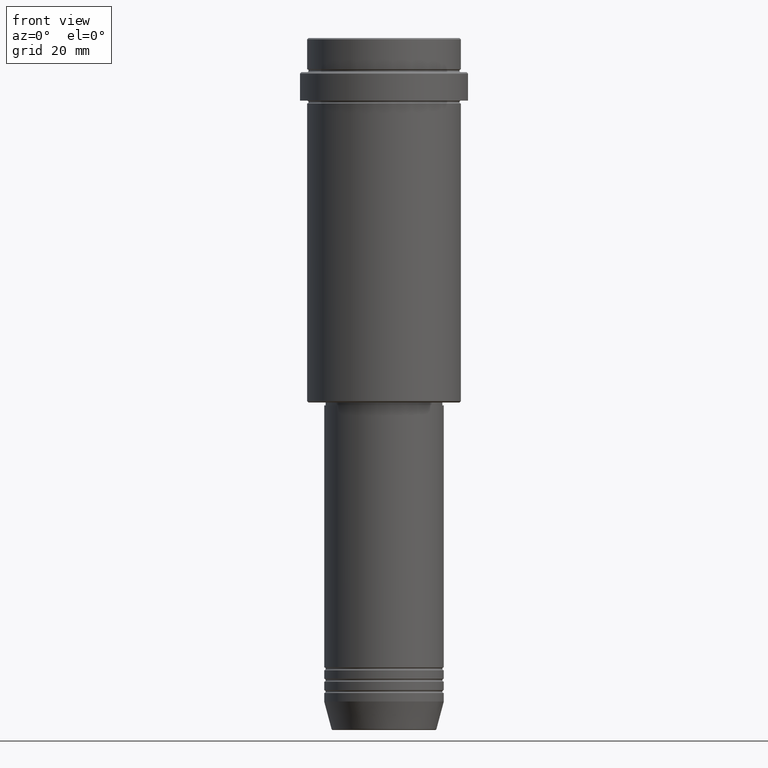
[diagram: clean part render]
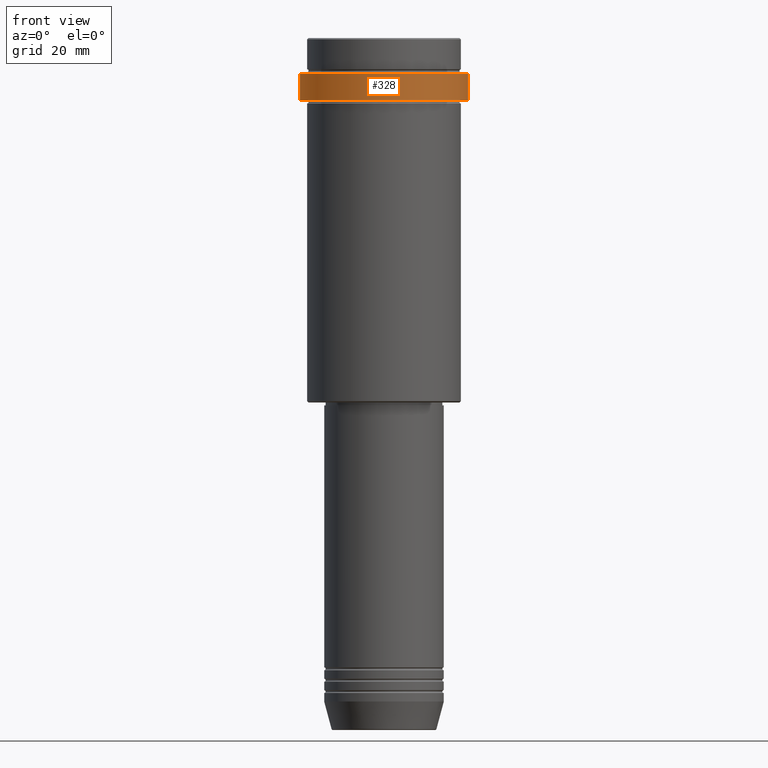
[diagram: same view with one face highlighted and labeled with its STEP entity id]
A machine part, front view. The second image highlights one B-rep face of the part: STEP entity #328.
In plain terms, the highlighted cylindrical surface (partial cylindrical patch) has radius 29.5 mm, axis along (-0, -0, 1).
Its self-contained STEP definition (entity closure, byte-faithful):
#58 = EDGE_LOOP ( 'NONE', ( #370, #353, #477, #722 ) ) ;
#166 = CARTESIAN_POINT ( 'NONE',  ( 0.000000000000000000, 0.000000000000000000, 0.000000000000000000 ) ) ;
#179 = FACE_OUTER_BOUND ( 'NONE', #58, .T. ) ;
#277 = VECTOR ( 'NONE', #1008, 1000.000000000000000 ) ;
#282 = CARTESIAN_POINT ( 'NONE',  ( 29.50000000000000000, 0.000000000000000000, 0.000000000000000000 ) ) ;
#306 = DIRECTION ( 'NONE',  ( -0.000000000000000000, -0.000000000000000000, 1.000000000000000000 ) ) ;
#311 = VERTEX_POINT ( 'NONE', #944 ) ;
#328 = ADVANCED_FACE ( 'NONE', ( #179 ), #926, .T. ) ;
#341 = AXIS2_PLACEMENT_3D ( 'NONE', #1153, #491, #469 ) ;
#344 = EDGE_CURVE ( 'NONE', #1013, #311, #599, .T. ) ;
#353 = ORIENTED_EDGE ( 'NONE', *, *, #693, .T. ) ;
#370 = ORIENTED_EDGE ( 'NONE', *, *, #1154, .F. ) ;
#469 = DIRECTION ( 'NONE',  ( 1.000000000000000000, 0.000000000000000000, 0.000000000000000000 ) ) ;
#477 = ORIENTED_EDGE ( 'NONE', *, *, #344, .T. ) ;
#491 = DIRECTION ( 'NONE',  ( -0.000000000000000000, -0.000000000000000000, 1.000000000000000000 ) ) ;
#499 = CIRCLE ( 'NONE', #1313, 29.50000000000000000 ) ;
#505 = EDGE_CURVE ( 'NONE', #311, #650, #499, .T. ) ;
#559 = DIRECTION ( 'NONE',  ( 1.000000000000000000, 0.000000000000000000, 0.000000000000000000 ) ) ;
#599 = LINE ( 'NONE', #282, #1183 ) ;
#603 = CARTESIAN_POINT ( 'NONE',  ( -29.50000000000000000, 3.612708057484691604E-15, 0.000000000000000000 ) ) ;
#650 = VERTEX_POINT ( 'NONE', #1122 ) ;
#693 = EDGE_CURVE ( 'NONE', #1407, #1013, #844, .T. ) ;
#722 = ORIENTED_EDGE ( 'NONE', *, *, #505, .T. ) ;
#791 = DIRECTION ( 'NONE',  ( 0.000000000000000000, 0.000000000000000000, -1.000000000000000000 ) ) ;
#844 = CIRCLE ( 'NONE', #341, 29.49999999999999645 ) ;
#926 = CYLINDRICAL_SURFACE ( 'NONE', #1248, 29.50000000000000000 ) ;
#944 = CARTESIAN_POINT ( 'NONE',  ( 29.50000000000000000, 0.000000000000000000, -12.49999999999994849 ) ) ;
#972 = CARTESIAN_POINT ( 'NONE',  ( -29.49999999999999645, 3.612708057484690815E-15, -22.00000000000000711 ) ) ;
#975 = CARTESIAN_POINT ( 'NONE',  ( 29.49999999999999645, 0.000000000000000000, -22.00000000000000711 ) ) ;
#1008 = DIRECTION ( 'NONE',  ( -0.000000000000000000, -0.000000000000000000, 1.000000000000000000 ) ) ;
#1013 = VERTEX_POINT ( 'NONE', #975 ) ;
#1073 = CARTESIAN_POINT ( 'NONE',  ( 0.000000000000000000, 0.000000000000000000, -12.49999999999994849 ) ) ;
#1121 = LINE ( 'NONE', #603, #277 ) ;
#1122 = CARTESIAN_POINT ( 'NONE',  ( -29.50000000000000000, 3.612708057484691604E-15, -12.49999999999994849 ) ) ;
#1142 = DIRECTION ( 'NONE',  ( 1.000000000000000000, 0.000000000000000000, 0.000000000000000000 ) ) ;
#1153 = CARTESIAN_POINT ( 'NONE',  ( 0.000000000000000000, 0.000000000000000000, -22.00000000000000711 ) ) ;
#1154 = EDGE_CURVE ( 'NONE', #1407, #650, #1121, .T. ) ;
#1183 = VECTOR ( 'NONE', #306, 1000.000000000000000 ) ;
#1248 = AXIS2_PLACEMENT_3D ( 'NONE', #166, #1377, #1142 ) ;
#1313 = AXIS2_PLACEMENT_3D ( 'NONE', #1073, #791, #559 ) ;
#1377 = DIRECTION ( 'NONE',  ( -0.000000000000000000, -0.000000000000000000, 1.000000000000000000 ) ) ;
#1407 = VERTEX_POINT ( 'NONE', #972 ) ;